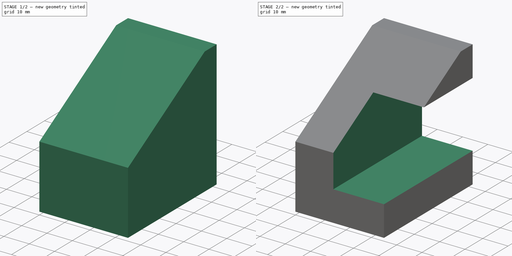
[diagram: build sequence overview — one tinted view per stage of 2, left to right]
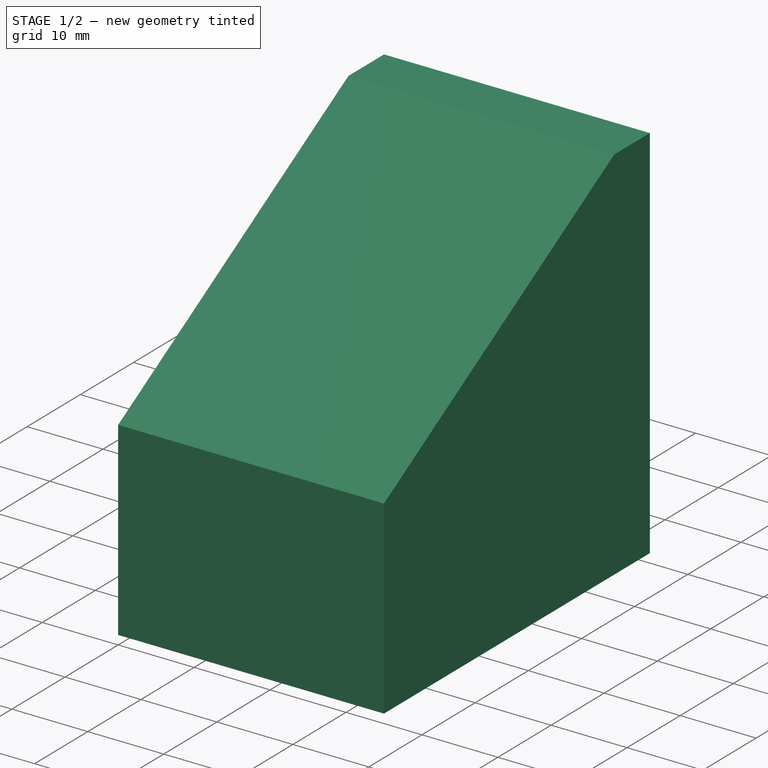
[diagram: stage 1 of 2 — iso view after this stage's code; geometry added in this stage tinted green]
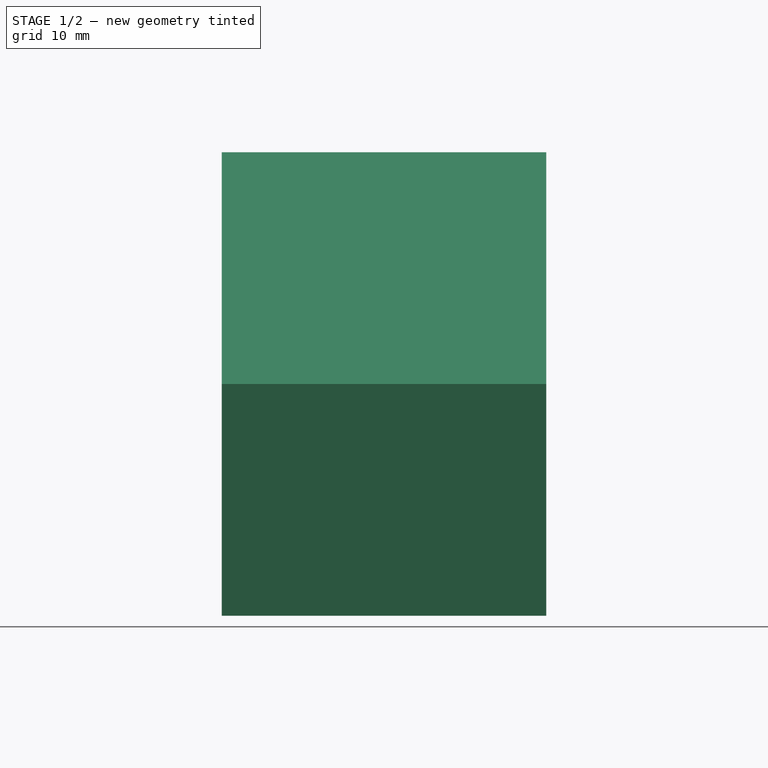
[diagram: stage 1 of 2 — front view after this stage's code; geometry added in this stage tinted green]
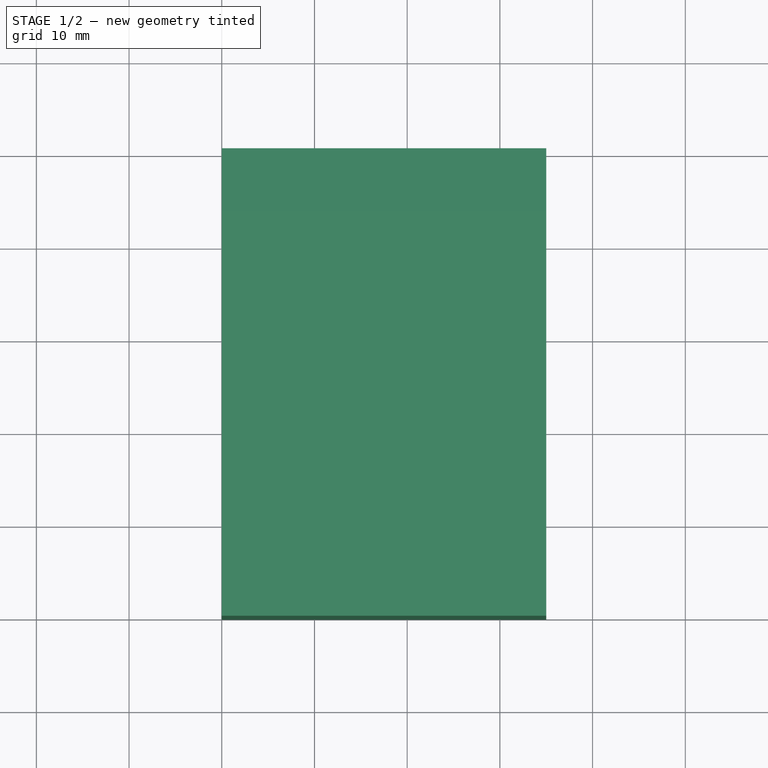
[diagram: stage 1 of 2 — top view after this stage's code; geometry added in this stage tinted green]
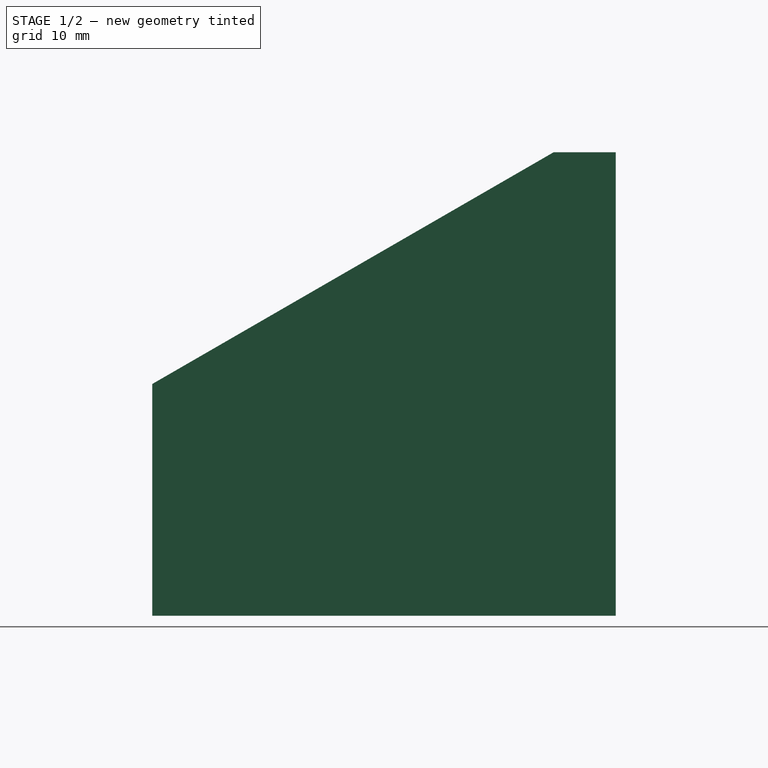
[diagram: stage 1 of 2 — right view after this stage's code; geometry added in this stage tinted green]
FCSTD DOCUMENT  (FreeCAD 0.16R6700 (Git))
Label: ejer6 final
License: All rights reserved
LicenseURL: http://en.wikipedia.org/wiki/All_rights_reserved
objects: Sketcher::SketchObject×2, PartDesign::Pocket×2, Part::Box×1
note: 7 computed .brp shape members not serialized (recipe doc carries the construction recipe); baked Part::Feature solids carry a one-line shape summary decoded from their .brp

FEATURE [Part::Box] Box  label="Cubo"
  Height = 50
  Length = 35
  Width = 50
FEATURE [Sketcher::SketchObject] Sketch
  ExternalGeometry = -> [Box]
  Placement = pos=(35,0,0) rot=(0.57735,0.57735,0.57735;2.0944rad)
  Support = -> Box [Face2]
  sketch-geometry (5):
    g0: LineSegment [constr] StartX=0 StartY=0 StartZ=0 EndX=0 EndY=25 EndZ=0
    g1: LineSegment [constr] StartX=0 StartY=25 StartZ=0 EndX=43.3013 EndY=50 EndZ=0
    g2: LineSegment StartX=0 StartY=25 StartZ=0 EndX=48.3874 EndY=52.9365 EndZ=0
    g3: LineSegment StartX=48.3874 StartY=52.9365 StartZ=0 EndX=0 EndY=52.9365 EndZ=0
    g4: LineSegment StartX=0 StartY=52.9365 StartZ=0 EndX=0 EndY=25 EndZ=0
  constraints (13):
    c: Coincident(g0,g-1)
    c: PointOnObject(g0,g-4)
    c: Coincident(g1,g0)
    c: Angle(g1,g-4) = 1.0472
    c: DistanceY(g-1,g0) = 25
    c: PointOnObject(g1,g-3)
    c: Coincident(g0,g2)
    c: Coincident(g2,g3)
    c: Horizontal(g3)
    c: Coincident(g3,g4)
    c: Coincident(g4,g2)
    c: Vertical(g4)
    c: PointOnObject(g1,g2)
FEATURE [PartDesign::Pocket] Pocket
  Length = 5
  Sketch = -> Sketch
  Type = 1
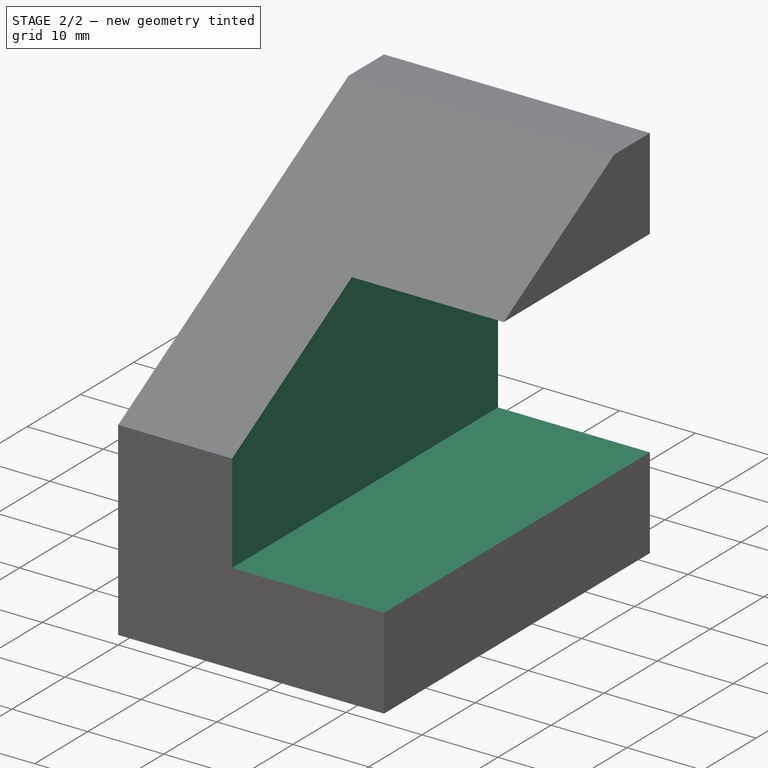
[diagram: stage 2 of 2 — iso view after this stage's code; geometry added in this stage tinted green]
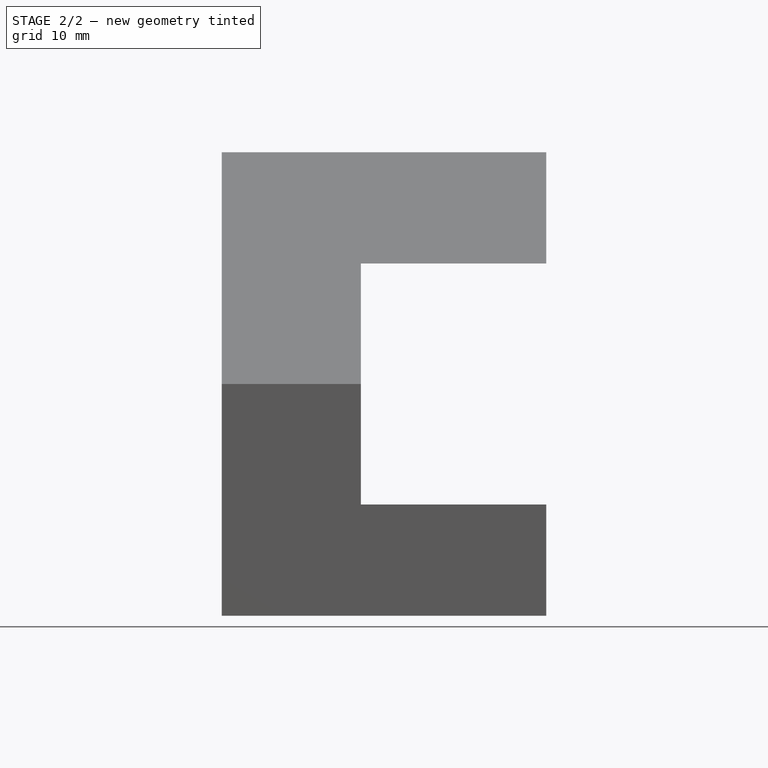
[diagram: stage 2 of 2 — front view after this stage's code; geometry added in this stage tinted green]
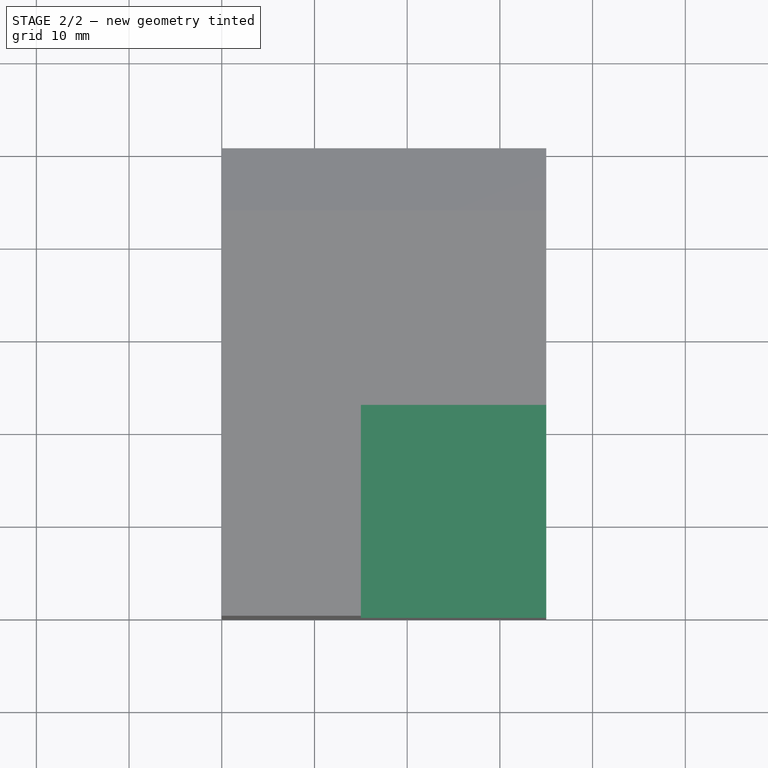
[diagram: stage 2 of 2 — top view after this stage's code; geometry added in this stage tinted green]
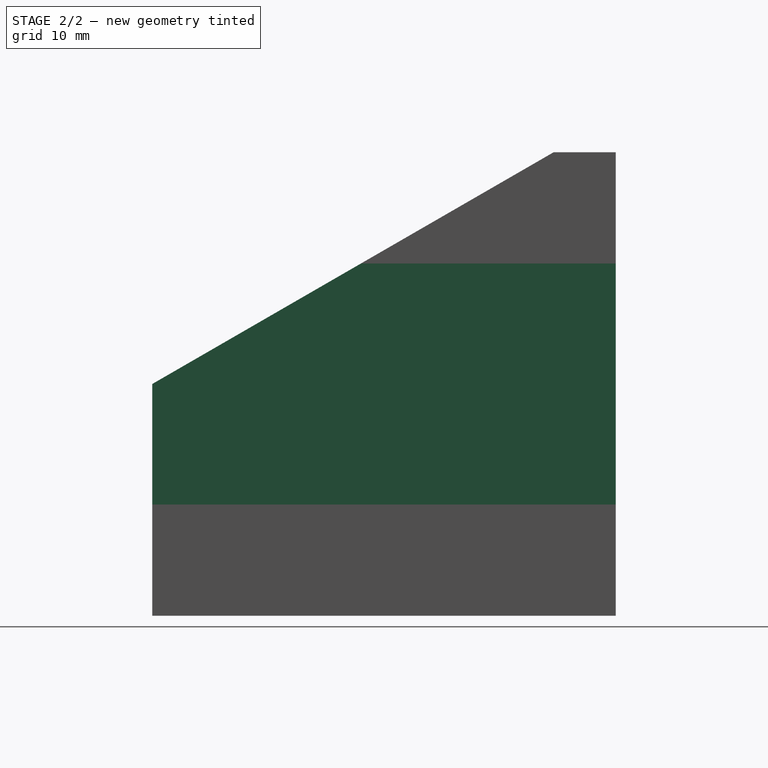
[diagram: stage 2 of 2 — right view after this stage's code; geometry added in this stage tinted green]
FEATURE [Sketcher::SketchObject] Sketch001
  ExternalGeometry = -> [Pocket]
  Placement = pos=(35,0,0) rot=(0.57735,0.57735,0.57735;2.0944rad)
  Support = -> Pocket [Face7]
  sketch-geometry (4):
    g0: LineSegment StartX=-4.92783 StartY=12 StartZ=0 EndX=58.3482 EndY=12 EndZ=0
    g1: LineSegment StartX=58.3482 StartY=12 StartZ=0 EndX=58.3482 EndY=38 EndZ=0
    g2: LineSegment StartX=58.3482 StartY=38 StartZ=0 EndX=-4.92783 EndY=38 EndZ=0
    g3: LineSegment StartX=-4.92783 StartY=38 StartZ=0 EndX=-4.92783 EndY=12 EndZ=0
  constraints (11):
    c: Coincident(g0,g1)
    c: Coincident(g1,g2)
    c: Coincident(g2,g3)
    c: Coincident(g3,g0)
    c: Horizontal(g0)
    c: Horizontal(g2)
    c: Vertical(g1)
    c: Vertical(g3)
    c: DistanceY(g-1,g-4) = 25
    c: DistanceY(g3,g3) = 26
    c: DistanceY(g-1,g0) = 12
FEATURE [PartDesign::Pocket] Pocket001
  Length = 20
  Sketch = -> Sketch001
  Type = 0
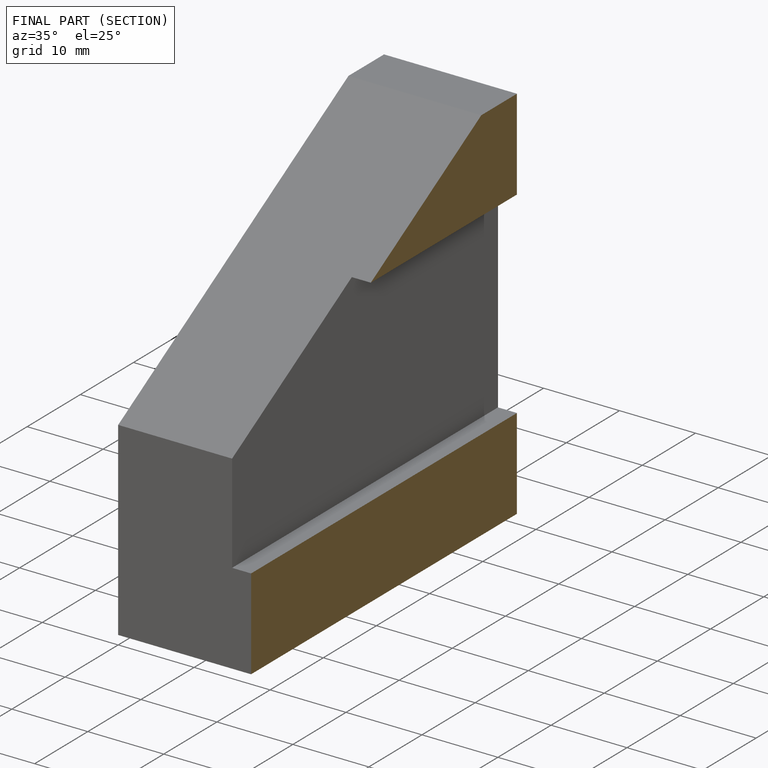
[diagram: finished part — half-section view (interior)]
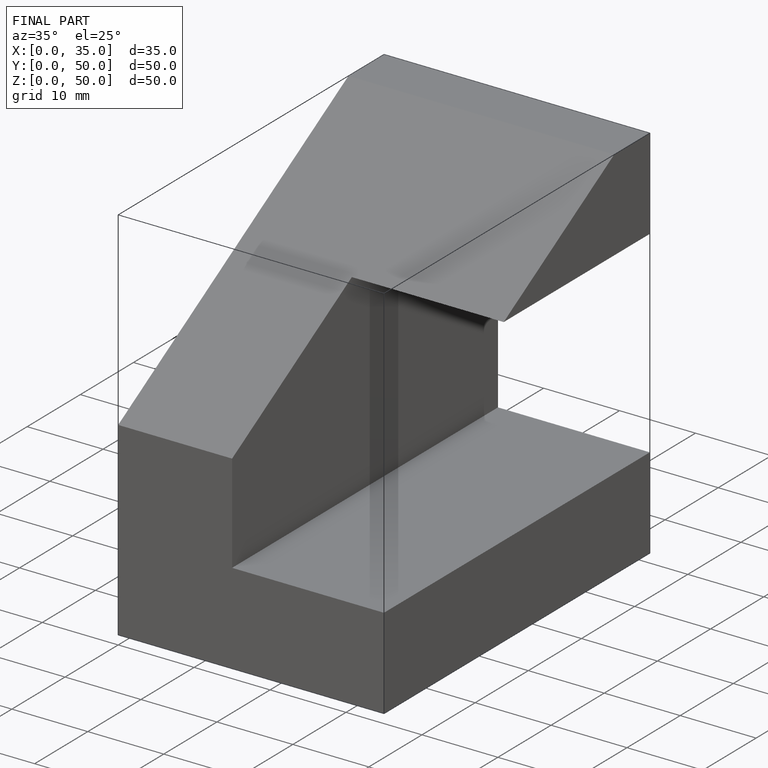
[diagram: finished part — iso view with bounding-box wireframe]
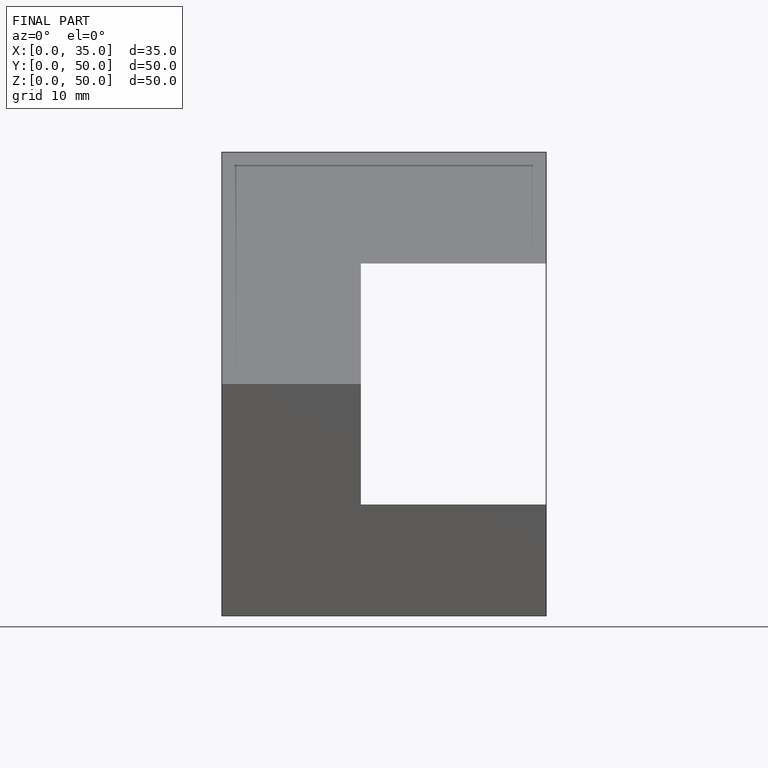
[diagram: finished part — front view with bounding-box wireframe]
